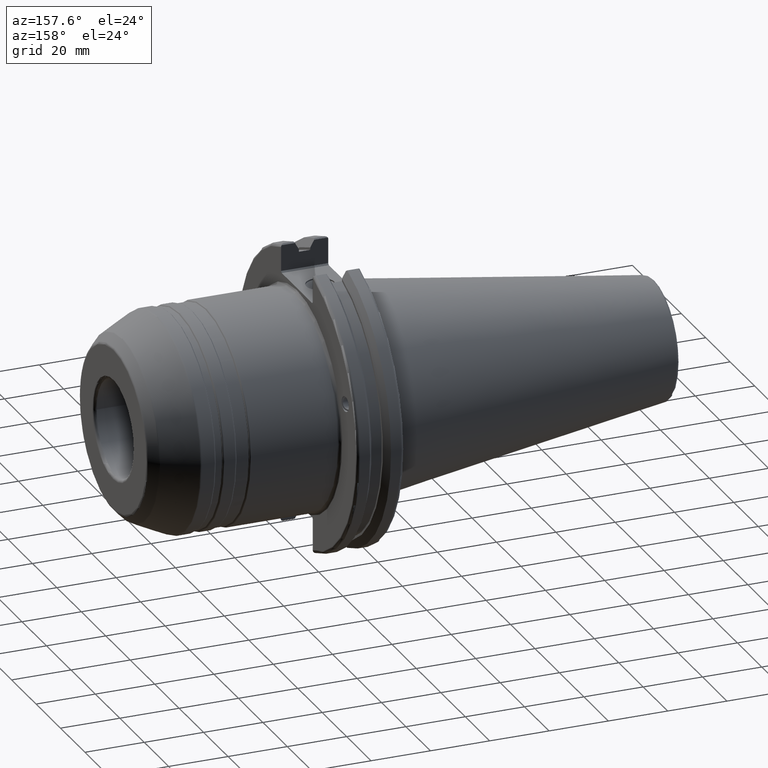
[diagram: clean part render]
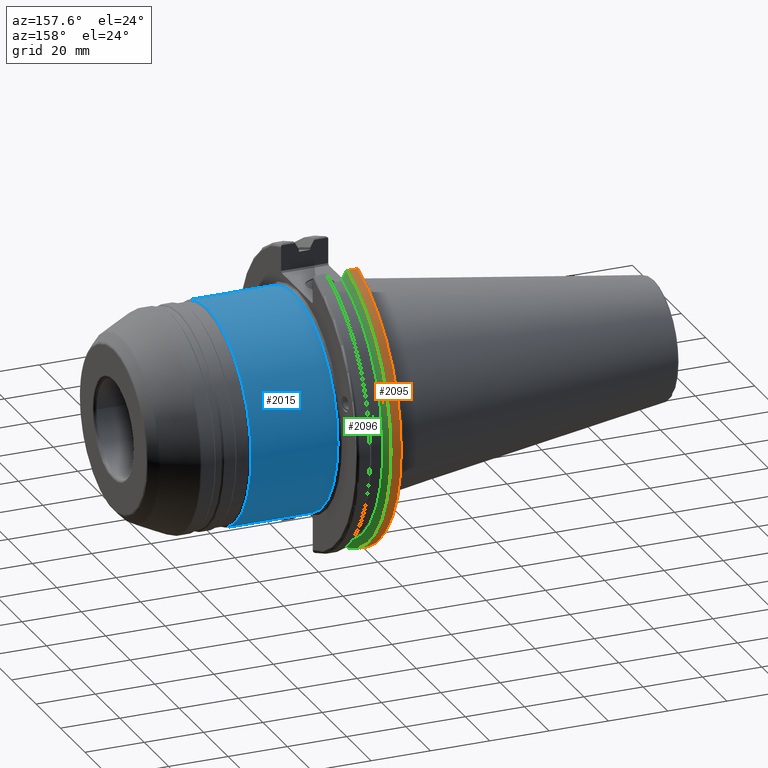
[diagram: same view with three faces highlighted in distinct colors, each labeled with its STEP entity id]
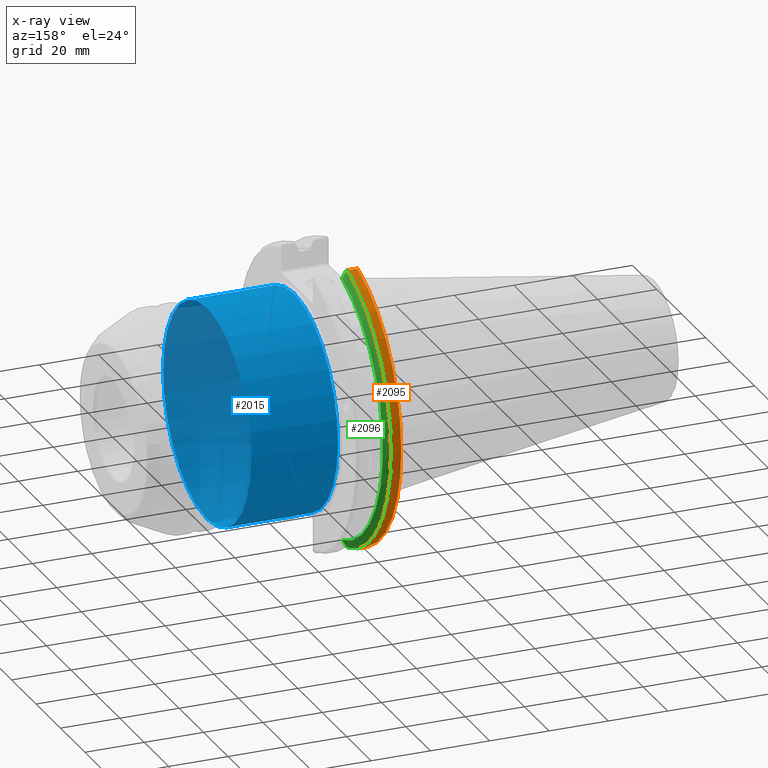
[diagram: x-ray of the same camera — body ghosted, the three highlighted faces saturated]
A machine part, auxiliary view with three faces highlighted in distinct colors.
The next image is the same camera in x-ray (body ghosted, the three faces saturated) — at least one of them is partly hidden behind the body in this view.
Their STEP definitions:

[orange] entity #2095 — the highlighted cylindrical surface (partial cylindrical patch) has radius 49.2125 mm, axis along (1, 0, 0).
#246=FACE_OUTER_BOUND('',#363,.T.);
#363=EDGE_LOOP('',(#1889,#1890,#1891,#1892));
#461=LINE('',#3903,#560);
#476=LINE('',#3985,#575);
#560=VECTOR('',#2974,10.);
#575=VECTOR('',#3043,10.);
#723=CIRCLE('',#2364,49.2125);
#736=CIRCLE('',#2394,49.2125);
#957=VERTEX_POINT('',#3876);
#958=VERTEX_POINT('',#3885);
#959=VERTEX_POINT('',#3902);
#978=VERTEX_POINT('',#3981);
#1258=EDGE_CURVE('',#957,#958,#723,.T.);
#1261=EDGE_CURVE('',#958,#959,#461,.T.);
#1295=EDGE_CURVE('',#978,#957,#476,.T.);
#1296=EDGE_CURVE('',#959,#978,#736,.T.);
#1889=ORIENTED_EDGE('',*,*,#1258,.F.);
#1890=ORIENTED_EDGE('',*,*,#1295,.F.);
#1891=ORIENTED_EDGE('',*,*,#1296,.F.);
#1892=ORIENTED_EDGE('',*,*,#1261,.F.);
#2005=CYLINDRICAL_SURFACE('',#2393,49.2125);
#2095=ADVANCED_FACE('',(#246),#2005,.T.);
#2364=AXIS2_PLACEMENT_3D('',#3886,#2970,#2971);
#2393=AXIS2_PLACEMENT_3D('',#3986,#3044,#3045);
#2394=AXIS2_PLACEMENT_3D('',#3987,#3046,#3047);
#2970=DIRECTION('center_axis',(-1.,0.,0.));
#2971=DIRECTION('ref_axis',(0.,1.,-6.12323399573677E-17));
#2974=DIRECTION('',(1.,0.,0.));
#3043=DIRECTION('',(-1.,0.,0.));
#3044=DIRECTION('center_axis',(1.,0.,0.));
#3045=DIRECTION('ref_axis',(0.,1.,0.));
#3046=DIRECTION('center_axis',(1.,0.,0.));
#3047=DIRECTION('ref_axis',(0.,0.,-1.));
#3876=CARTESIAN_POINT('',(4.175,13.4317035994433,47.3440544806494));
#3885=CARTESIAN_POINT('',(4.175,13.4317035994433,-47.3440544806494));
#3886=CARTESIAN_POINT('Origin',(4.175,0.,0.));
#3902=CARTESIAN_POINT('',(7.60799096595127,13.4317035994433,-47.3440544806494));
#3903=CARTESIAN_POINT('',(5.39149548297563,13.4317035994433,-47.3440544806494));
#3981=CARTESIAN_POINT('',(7.60799096595127,13.4317035994433,47.3440544806494));
#3985=CARTESIAN_POINT('',(5.39149548297563,13.4317035994433,47.3440544806494));
#3986=CARTESIAN_POINT('Origin',(5.39149548297563,0.,0.));
#3987=CARTESIAN_POINT('Origin',(7.60799096595127,0.,0.));

[blue] entity #2015 — the highlighted cylindrical surface (bore or boss wall) has radius 36 mm, axis along (1, 0, 0).
#72=B_SPLINE_CURVE_WITH_KNOTS('',3,(#3196,#3197,#3198,#3199,#3200,#3201,
#3202,#3203,#3204,#3205),.UNSPECIFIED.,.F.,.F.,(4,2,2,2,4),(4.9601373997148,
5.20569664937071,5.67880184440575,6.15190703944078,6.39746628909669),
 .UNSPECIFIED.);
#166=FACE_OUTER_BOUND('',#270,.T.);
#270=EDGE_LOOP('',(#1347,#1348,#1349,#1350,#1351,#1352,#1353,#1354,#1355,
#1356));
#385=LINE('',#3192,#484);
#386=LINE('',#3194,#485);
#387=LINE('',#3206,#486);
#484=VECTOR('',#2482,35.9999999999999);
#485=VECTOR('',#2483,10.);
#486=VECTOR('',#2484,10.);
#595=CIRCLE('',#2152,35.9999999999999);
#596=CIRCLE('',#2153,35.9999999999999);
#598=CIRCLE('',#2156,35.9999999999999);
#599=CIRCLE('',#2157,35.9999999999999);
#600=CIRCLE('',#2158,35.9999999999999);
#767=VERTEX_POINT('',#3155);
#768=VERTEX_POINT('',#3168);
#769=VERTEX_POINT('',#3170);
#771=VERTEX_POINT('',#3187);
#772=VERTEX_POINT('',#3188);
#773=VERTEX_POINT('',#3190);
#774=VERTEX_POINT('',#3193);
#775=VERTEX_POINT('',#3195);
#1005=EDGE_CURVE('',#767,#768,#595,.T.);
#1006=EDGE_CURVE('',#768,#769,#596,.T.);
#1009=EDGE_CURVE('',#771,#772,#598,.T.);
#1010=EDGE_CURVE('',#773,#771,#599,.T.);
#1011=EDGE_CURVE('',#773,#768,#385,.T.);
#1012=EDGE_CURVE('',#767,#774,#386,.T.);
#1013=EDGE_CURVE('',#774,#775,#72,.T.);
#1014=EDGE_CURVE('',#775,#769,#387,.T.);
#1015=EDGE_CURVE('',#772,#773,#600,.T.);
#1347=ORIENTED_EDGE('',*,*,#1009,.F.);
#1348=ORIENTED_EDGE('',*,*,#1010,.F.);
#1349=ORIENTED_EDGE('',*,*,#1011,.T.);
#1350=ORIENTED_EDGE('',*,*,#1005,.F.);
#1351=ORIENTED_EDGE('',*,*,#1012,.T.);
#1352=ORIENTED_EDGE('',*,*,#1013,.T.);
#1353=ORIENTED_EDGE('',*,*,#1014,.T.);
#1354=ORIENTED_EDGE('',*,*,#1006,.F.);
#1355=ORIENTED_EDGE('',*,*,#1011,.F.);
#1356=ORIENTED_EDGE('',*,*,#1015,.F.);
#1980=CYLINDRICAL_SURFACE('',#2155,35.9999999999999);
#2015=ADVANCED_FACE('',(#166),#1980,.T.);
#2152=AXIS2_PLACEMENT_3D('',#3169,#2470,#2471);
#2153=AXIS2_PLACEMENT_3D('',#3171,#2472,#2473);
#2155=AXIS2_PLACEMENT_3D('',#3186,#2476,#2477);
#2156=AXIS2_PLACEMENT_3D('',#3189,#2478,#2479);
#2157=AXIS2_PLACEMENT_3D('',#3191,#2480,#2481);
#2158=AXIS2_PLACEMENT_3D('',#3207,#2485,#2486);
#2470=DIRECTION('center_axis',(-1.,0.,0.));
#2471=DIRECTION('ref_axis',(0.,6.12323399573677E-17,1.));
#2472=DIRECTION('center_axis',(-1.,0.,0.));
#2473=DIRECTION('ref_axis',(0.,6.12323399573677E-17,1.));
#2476=DIRECTION('center_axis',(1.,0.,0.));
#2477=DIRECTION('ref_axis',(0.,1.,0.));
#2478=DIRECTION('center_axis',(1.,0.,0.));
#2479=DIRECTION('ref_axis',(0.,0.,-1.));
#2480=DIRECTION('center_axis',(1.,0.,0.));
#2481=DIRECTION('ref_axis',(0.,0.,-1.));
#2482=DIRECTION('',(-1.,0.,0.));
#2483=DIRECTION('',(1.,0.,0.));
#2484=DIRECTION('',(-1.,0.,0.));
#2485=DIRECTION('center_axis',(1.,0.,0.));
#2486=DIRECTION('ref_axis',(0.,0.,-1.));
#3155=CARTESIAN_POINT('',(20.05,-7.03465450466437,-35.306));
#3168=CARTESIAN_POINT('',(20.05,-35.9999999999999,-4.40872847693046E-15));
#3169=CARTESIAN_POINT('Origin',(20.05,0.,0.));
#3170=CARTESIAN_POINT('',(20.05,7.03465450466437,-35.306));
#3171=CARTESIAN_POINT('Origin',(20.05,0.,0.));
#3186=CARTESIAN_POINT('Origin',(34.2074573519457,0.,0.));
#3187=CARTESIAN_POINT('',(49.3649147038914,35.9999999999999,0.));
#3188=CARTESIAN_POINT('',(49.3649147038914,-4.40872847693046E-15,35.9999999999999));
#3189=CARTESIAN_POINT('Origin',(49.3649147038914,0.,0.));
#3190=CARTESIAN_POINT('',(49.3649147038914,-35.9999999999999,-4.40872847693046E-15));
#3191=CARTESIAN_POINT('Origin',(49.3649147038914,0.,0.));
#3192=CARTESIAN_POINT('',(34.2074573519457,-35.9999999999999,-4.40872847693046E-15));
#3193=CARTESIAN_POINT('',(29.322104750245,-7.03465450466437,-35.306));
#3194=CARTESIAN_POINT('',(34.2074573519457,-7.03465450466437,-35.306));
#3195=CARTESIAN_POINT('',(29.322104750245,7.03465450466437,-35.306));
#3196=CARTESIAN_POINT('Ctrl Pts',(29.322104750245,-7.03465450466437,-35.306));
#3197=CARTESIAN_POINT('Ctrl Pts',(29.8000458055475,-6.33675802925751,-35.4450545681898));
#3198=CARTESIAN_POINT('Ctrl Pts',(30.2140225967656,-5.57752238745269,-35.5743562724855));
#3199=CARTESIAN_POINT('Ctrl Pts',(31.1821845082721,-3.2504770705974,-35.8862555895276));
#3200=CARTESIAN_POINT('Ctrl Pts',(31.5,-1.57701731678345,-35.9999999999999));
#3201=CARTESIAN_POINT('Ctrl Pts',(31.5,1.57701731678345,-35.9999999999999));
#3202=CARTESIAN_POINT('Ctrl Pts',(31.1821845082721,3.2504770705974,-35.8862555895276));
#3203=CARTESIAN_POINT('Ctrl Pts',(30.2140225967656,5.57752238745269,-35.5743562724855));
#3204=CARTESIAN_POINT('Ctrl Pts',(29.8000458055475,6.33675802925752,-35.4450545681898));
#3205=CARTESIAN_POINT('Ctrl Pts',(29.322104750245,7.03465450466437,-35.306));
#3206=CARTESIAN_POINT('',(34.2074573519457,7.03465450466437,-35.306));
#3207=CARTESIAN_POINT('Origin',(49.3649147038914,0.,0.));

[green] entity #2096 — the highlighted conical surface has half-angle 60 deg.
#16=(
BOUNDED_CURVE()
B_SPLINE_CURVE(2,(#3742,#3743,#3744),.UNSPECIFIED.,.F.,.F.)
B_SPLINE_CURVE_WITH_KNOTS((3,3),(0.,0.275823910674652),.UNSPECIFIED.)
CURVE()
GEOMETRIC_REPRESENTATION_ITEM()
RATIONAL_B_SPLINE_CURVE((1.,1.00038235573731,1.00012873636533))
REPRESENTATION_ITEM('')
);
#24=(
BOUNDED_CURVE()
B_SPLINE_CURVE(2,(#3904,#3905,#3906),.UNSPECIFIED.,.F.,.F.)
B_SPLINE_CURVE_WITH_KNOTS((3,3),(0.,0.0648240472898323),.UNSPECIFIED.)
CURVE()
GEOMETRIC_REPRESENTATION_ITEM()
RATIONAL_B_SPLINE_CURVE((1.,1.00011477674853,1.00019140645976))
REPRESENTATION_ITEM('')
);
#26=(
BOUNDED_CURVE()
B_SPLINE_CURVE(2,(#3954,#3955,#3956),.UNSPECIFIED.,.F.,.F.)
B_SPLINE_CURVE_WITH_KNOTS((3,3),(0.0558332664491378,0.331657177124507),
 .UNSPECIFIED.)
CURVE()
GEOMETRIC_REPRESENTATION_ITEM()
RATIONAL_B_SPLINE_CURVE((1.00012873637135,1.00038235575519,1.))
REPRESENTATION_ITEM('')
);
#30=(
BOUNDED_CURVE()
B_SPLINE_CURVE(2,(#3982,#3983,#3984),.UNSPECIFIED.,.F.,.F.)
B_SPLINE_CURVE_WITH_KNOTS((3,3),(0.325260944932483,0.390084992222205),
 .UNSPECIFIED.)
CURVE()
GEOMETRIC_REPRESENTATION_ITEM()
RATIONAL_B_SPLINE_CURVE((1.00019140645955,1.00011477674841,1.))
REPRESENTATION_ITEM('')
);
#63=CONICAL_SURFACE('',#2395,47.8172386482472,1.0471975511966);
#247=FACE_OUTER_BOUND('',#364,.T.);
#364=EDGE_LOOP('',(#1893,#1894,#1895,#1896,#1897,#1898));
#736=CIRCLE('',#2394,49.2125);
#737=CIRCLE('',#2396,46.4219772964944);
#929=VERTEX_POINT('',#3739);
#930=VERTEX_POINT('',#3741);
#959=VERTEX_POINT('',#3902);
#973=VERTEX_POINT('',#3951);
#974=VERTEX_POINT('',#3953);
#978=VERTEX_POINT('',#3981);
#1221=EDGE_CURVE('',#930,#929,#16,.T.);
#1262=EDGE_CURVE('',#959,#929,#24,.T.);
#1284=EDGE_CURVE('',#974,#973,#26,.T.);
#1294=EDGE_CURVE('',#974,#978,#30,.T.);
#1296=EDGE_CURVE('',#959,#978,#736,.T.);
#1297=EDGE_CURVE('',#930,#973,#737,.T.);
#1893=ORIENTED_EDGE('',*,*,#1262,.F.);
#1894=ORIENTED_EDGE('',*,*,#1296,.T.);
#1895=ORIENTED_EDGE('',*,*,#1294,.F.);
#1896=ORIENTED_EDGE('',*,*,#1284,.T.);
#1897=ORIENTED_EDGE('',*,*,#1297,.F.);
#1898=ORIENTED_EDGE('',*,*,#1221,.T.);
#2096=ADVANCED_FACE('',(#247),#63,.T.);
#2394=AXIS2_PLACEMENT_3D('',#3987,#3046,#3047);
#2395=AXIS2_PLACEMENT_3D('',#3988,#3048,#3049);
#2396=AXIS2_PLACEMENT_3D('',#3989,#3050,#3051);
#3046=DIRECTION('center_axis',(1.,0.,0.));
#3047=DIRECTION('ref_axis',(0.,0.,-1.));
#3048=DIRECTION('center_axis',(-1.,0.,0.));
#3049=DIRECTION('ref_axis',(0.,1.,0.));
#3050=DIRECTION('center_axis',(1.,0.,0.));
#3051=DIRECTION('ref_axis',(0.,0.,-1.));
#3739=CARTESIAN_POINT('',(7.88638960562424,12.95,-46.9780755322918));
#3741=CARTESIAN_POINT('',(9.2191,12.95,-44.5791147973604));
#3742=CARTESIAN_POINT('Ctrl Pts',(9.2191,12.95,-44.5791147973604));
#3743=CARTESIAN_POINT('Ctrl Pts',(8.57020449055827,12.95,-45.7494966802153));
#3744=CARTESIAN_POINT('Ctrl Pts',(7.88638960562424,12.95,-46.9780755322918));
#3902=CARTESIAN_POINT('',(7.60799096595127,13.4317035994433,-47.3440544806494));
#3904=CARTESIAN_POINT('Ctrl Pts',(7.60799096595127,13.4317035994433,-47.3440544806494));
#3905=CARTESIAN_POINT('Ctrl Pts',(7.74826896663818,13.1896660169966,-47.1601640966265));
#3906=CARTESIAN_POINT('Ctrl Pts',(7.88638960562424,12.95,-46.9780755322918));
#3951=CARTESIAN_POINT('',(9.2191,12.95,44.5791147973604));
#3953=CARTESIAN_POINT('',(7.88638960562424,12.95,46.9780755322918));
#3954=CARTESIAN_POINT('Ctrl Pts',(7.88638960562424,12.95,46.9780755322918));
#3955=CARTESIAN_POINT('Ctrl Pts',(8.57020449055492,12.95,45.7494966802213));
#3956=CARTESIAN_POINT('Ctrl Pts',(9.2191,12.95,44.5791147973604));
#3981=CARTESIAN_POINT('',(7.60799096595127,13.4317035994433,47.3440544806494));
#3982=CARTESIAN_POINT('Ctrl Pts',(7.88638960562424,12.95,46.9780755322917));
#3983=CARTESIAN_POINT('Ctrl Pts',(7.74826896663821,13.1896660169966,47.1601640966264));
#3984=CARTESIAN_POINT('Ctrl Pts',(7.60799096595127,13.4317035994433,47.3440544806494));
#3987=CARTESIAN_POINT('Origin',(7.60799096595127,0.,0.));
#3988=CARTESIAN_POINT('Origin',(8.41354548297563,0.,0.));
#3989=CARTESIAN_POINT('Origin',(9.2191,0.,0.));